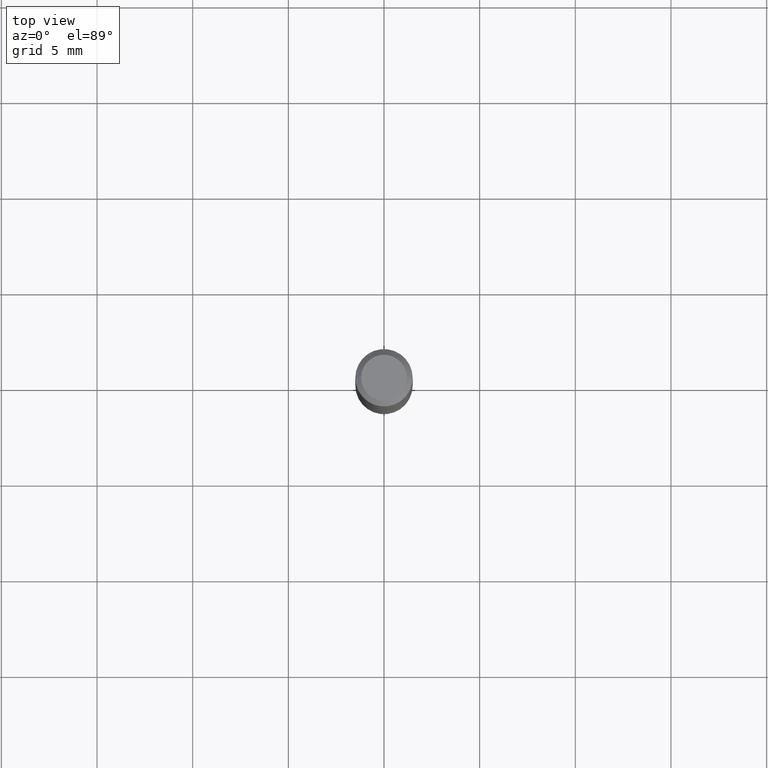
[diagram: clean part render]
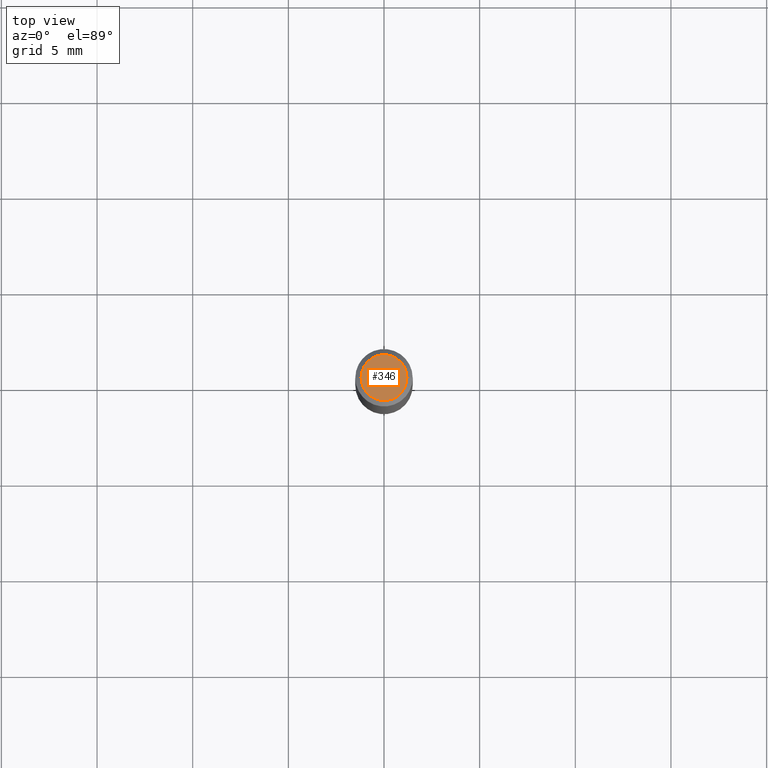
[diagram: same view with one face highlighted and labeled with its STEP entity id]
A machine part, top view. The second image highlights one B-rep face of the part: STEP entity #346.
In plain terms, the highlighted planar face has unit normal (0, -0, -1).
Its self-contained STEP definition (entity closure, byte-faithful):
#8 = DIRECTION ( 'NONE',  ( 1.000000000000000000, -6.982962677686266711E-15, 4.876185090822587894E-29 ) ) ;
#19 = EDGE_LOOP ( 'NONE', ( #474, #64 ) ) ;
#25 = DIRECTION ( 'NONE',  ( -2.445468806185136597E-29, 3.491481338843145583E-15, 1.000000000000000000 ) ) ;
#64 = ORIENTED_EDGE ( 'NONE', *, *, #252, .T. ) ;
#128 = PLANE ( 'NONE',  #137 ) ;
#137 = AXIS2_PLACEMENT_3D ( 'NONE', #174, #290, #471 ) ;
#174 = CARTESIAN_POINT ( 'NONE',  ( 4.132873053354867254E-48, -5.900647395337818946E-34, -1.690012582823346072E-19 ) ) ;
#180 = VERTEX_POINT ( 'NONE', #462 ) ;
#194 = CARTESIAN_POINT ( 'NONE',  ( 8.265746106709734507E-48, -1.180129479067563789E-33, -3.380025165646692144E-19 ) ) ;
#214 = FACE_OUTER_BOUND ( 'NONE', #19, .T. ) ;
#252 = EDGE_CURVE ( 'NONE', #180, #304, #439, .T. ) ;
#277 = AXIS2_PLACEMENT_3D ( 'NONE', #194, #347, #8 ) ;
#290 = DIRECTION ( 'NONE',  ( 2.438088387897960049E-29, -3.491481338843145188E-15, -1.000000000000000000 ) ) ;
#292 = DIRECTION ( 'NONE',  ( 1.000000000000000000, -6.982962677686266711E-15, 4.876185090822587894E-29 ) ) ;
#296 = CARTESIAN_POINT ( 'NONE',  ( 8.265746106709734507E-48, -1.180129479067563789E-33, -3.380025165646692144E-19 ) ) ;
#304 = VERTEX_POINT ( 'NONE', #481 ) ;
#306 = AXIS2_PLACEMENT_3D ( 'NONE', #296, #25, #292 ) ;
#346 = ADVANCED_FACE ( 'NONE', ( #214 ), #128, .F. ) ;
#347 = DIRECTION ( 'NONE',  ( -2.445468806185136597E-29, 3.491481338843145583E-15, 1.000000000000000000 ) ) ;
#439 = CIRCLE ( 'NONE', #277, 0.04724000000000000421 ) ;
#457 = CIRCLE ( 'NONE', #306, 0.04724000000000000421 ) ;
#462 = CARTESIAN_POINT ( 'NONE',  ( 0.04724000000000000421, -3.852183633974369345E-16, -3.380025165621689721E-19 ) ) ;
#471 = DIRECTION ( 'NONE',  ( -1.000000000000000000, 6.982962677686265922E-15, -4.876176775795935793E-29 ) ) ;
#474 = ORIENTED_EDGE ( 'NONE', *, *, #480, .T. ) ;
#480 = EDGE_CURVE ( 'NONE', #304, #180, #457, .T. ) ;
#481 = CARTESIAN_POINT ( 'NONE',  ( -0.04724000000000000421, 3.504923541997677355E-16, -3.380025165670481712E-19 ) ) ;